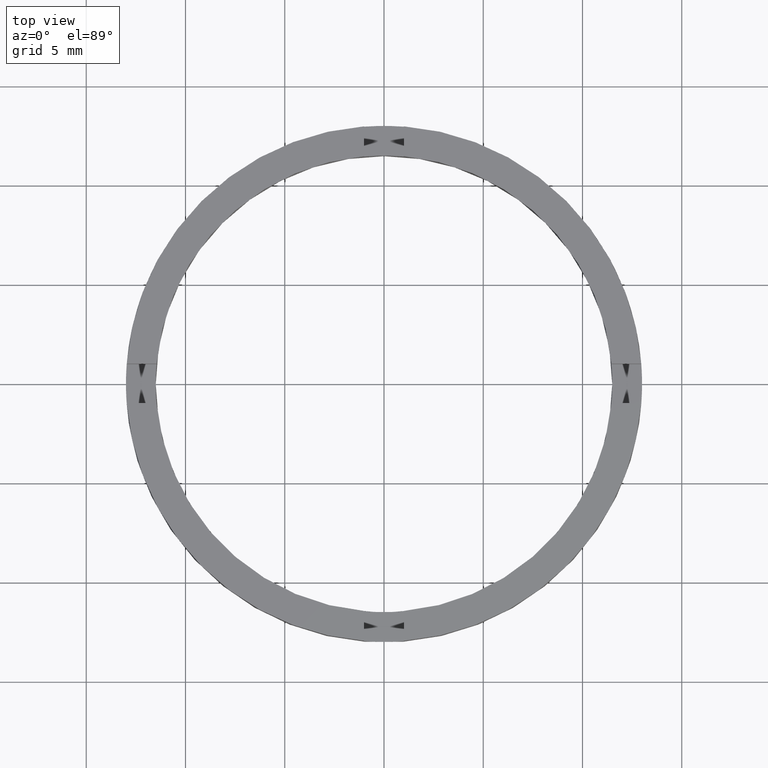
[diagram: clean part render]
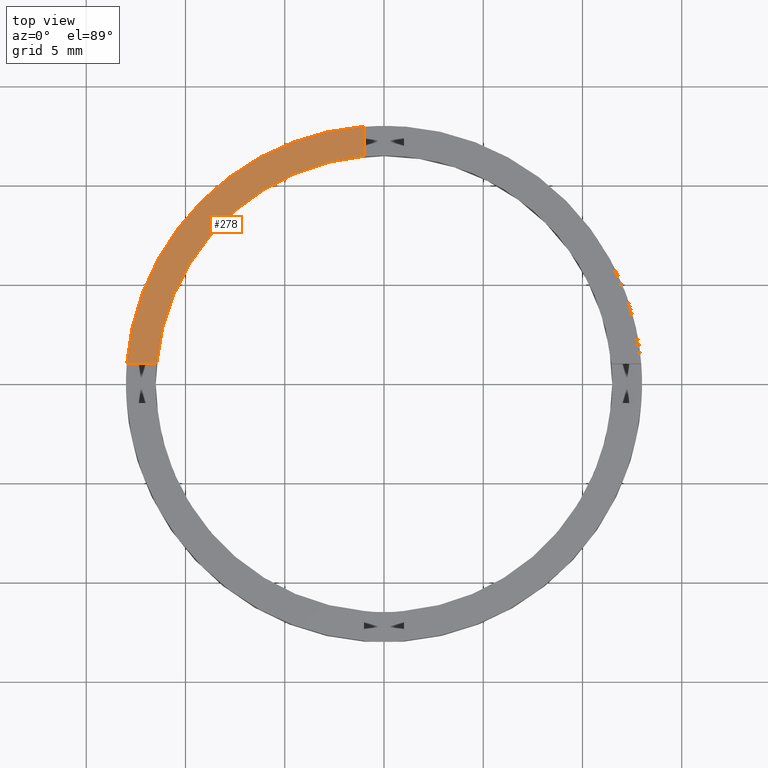
[diagram: same view with one face highlighted and labeled with its STEP entity id]
A machine part, top view. The second image highlights one B-rep face of the part: STEP entity #278.
In plain terms, the highlighted planar face has unit normal (0, 0, 1).
Its self-contained STEP definition (entity closure, byte-faithful):
#1 = DIRECTION ( 'NONE',  ( 1.000000000000000000, 0.000000000000000000, -0.000000000000000000 ) ) ;
#34 = CARTESIAN_POINT ( 'NONE',  ( 0.000000000000000000, 0.000000000000000000, 2.500000000000000000 ) ) ;
#41 = CIRCLE ( 'NONE', #481, 11.50000000000000000 ) ;
#47 = DIRECTION ( 'NONE',  ( 0.000000000000000000, 0.000000000000000000, 1.000000000000000000 ) ) ;
#74 = EDGE_CURVE ( 'NONE', #110, #430, #228, .T. ) ;
#98 = ORIENTED_EDGE ( 'NONE', *, *, #74, .F. ) ;
#108 = ORIENTED_EDGE ( 'NONE', *, *, #247, .F. ) ;
#110 = VERTEX_POINT ( 'NONE', #354 ) ;
#175 = AXIS2_PLACEMENT_3D ( 'NONE', #34, #47, #1 ) ;
#219 = DIRECTION ( 'NONE',  ( 0.000000000000000000, 0.000000000000000000, 1.000000000000000000 ) ) ;
#228 = LINE ( 'NONE', #590, #494 ) ;
#247 = EDGE_CURVE ( 'NONE', #709, #619, #273, .T. ) ;
#273 = LINE ( 'NONE', #534, #540 ) ;
#278 = ADVANCED_FACE ( 'NONE', ( #543 ), #780, .T. ) ;
#299 = DIRECTION ( 'NONE',  ( -0.000000000000000000, -1.000000000000000000, -0.000000000000000000 ) ) ;
#312 = CIRCLE ( 'NONE', #466, 12.99999999999999822 ) ;
#333 = CARTESIAN_POINT ( 'NONE',  ( 0.000000000000000000, 0.000000000000000000, 2.500000000000000000 ) ) ;
#354 = CARTESIAN_POINT ( 'NONE',  ( -1.000000000000024647, 12.96148139681571543, 2.500000000000000000 ) ) ;
#361 = ORIENTED_EDGE ( 'NONE', *, *, #607, .T. ) ;
#430 = VERTEX_POINT ( 'NONE', #570 ) ;
#466 = AXIS2_PLACEMENT_3D ( 'NONE', #628, #530, #473 ) ;
#473 = DIRECTION ( 'NONE',  ( 1.000000000000000000, 0.000000000000000000, 0.000000000000000000 ) ) ;
#481 = AXIS2_PLACEMENT_3D ( 'NONE', #333, #219, #537 ) ;
#494 = VECTOR ( 'NONE', #299, 1000.000000000000000 ) ;
#530 = DIRECTION ( 'NONE',  ( 0.000000000000000000, 0.000000000000000000, 1.000000000000000000 ) ) ;
#534 = CARTESIAN_POINT ( 'NONE',  ( -3.000000000000179412, 0.9999999999999794609, 2.500000000000000000 ) ) ;
#537 = DIRECTION ( 'NONE',  ( 1.000000000000000000, 0.000000000000000000, 0.000000000000000000 ) ) ;
#540 = VECTOR ( 'NONE', #580, 1000.000000000000000 ) ;
#543 = FACE_OUTER_BOUND ( 'NONE', #603, .T. ) ;
#570 = CARTESIAN_POINT ( 'NONE',  ( -1.000000000000024647, 11.45643923738959735, 2.500000000000000000 ) ) ;
#580 = DIRECTION ( 'NONE',  ( -1.000000000000000000, -1.734723475976806848E-16, 0.000000000000000000 ) ) ;
#590 = CARTESIAN_POINT ( 'NONE',  ( -1.000000000000024647, 2.999999999999995559, 2.500000000000000000 ) ) ;
#595 = EDGE_CURVE ( 'NONE', #430, #709, #41, .T. ) ;
#603 = EDGE_LOOP ( 'NONE', ( #98, #361, #108, #687 ) ) ;
#607 = EDGE_CURVE ( 'NONE', #110, #619, #312, .T. ) ;
#619 = VERTEX_POINT ( 'NONE', #772 ) ;
#628 = CARTESIAN_POINT ( 'NONE',  ( 0.000000000000000000, 0.000000000000000000, 2.500000000000000000 ) ) ;
#687 = ORIENTED_EDGE ( 'NONE', *, *, #595, .F. ) ;
#709 = VERTEX_POINT ( 'NONE', #715 ) ;
#715 = CARTESIAN_POINT ( 'NONE',  ( -11.45643923738960090, 0.9999999999999779066, 2.500000000000000000 ) ) ;
#772 = CARTESIAN_POINT ( 'NONE',  ( -12.96148139681571898, 0.9999999999999776845, 2.500000000000000000 ) ) ;
#780 = PLANE ( 'NONE',  #175 ) ;